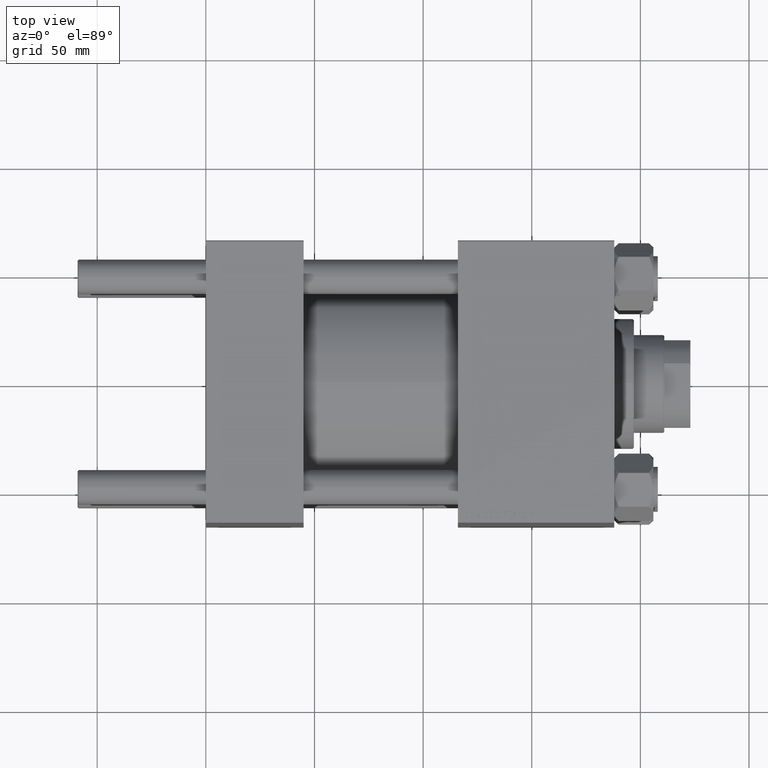
[diagram: clean part render]
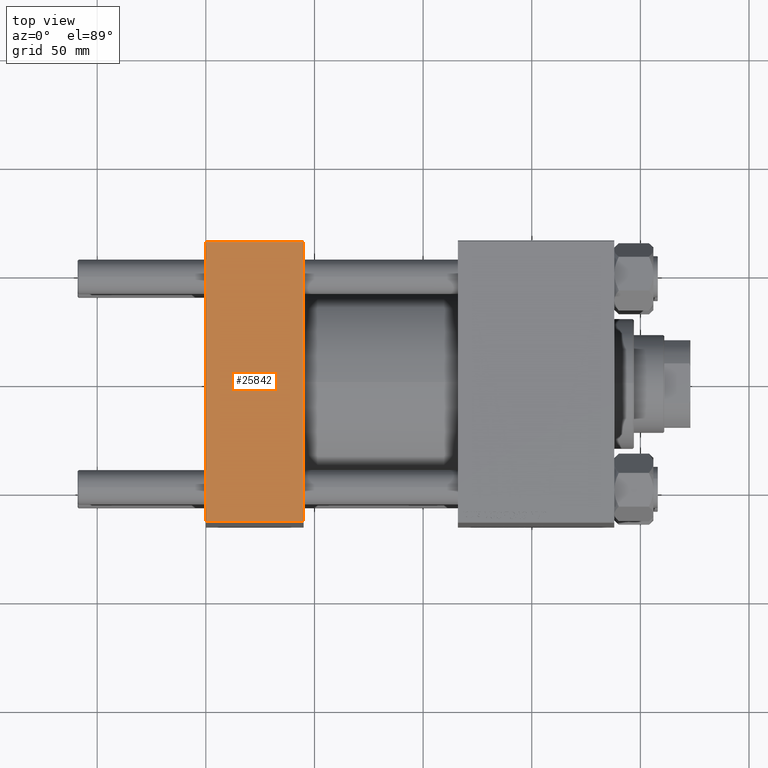
[diagram: same view with one face highlighted and labeled with its STEP entity id]
A machine part, top view. The second image highlights one B-rep face of the part: STEP entity #25842.
In plain terms, the highlighted planar face has unit normal (0, 0, -1).
Its self-contained STEP definition (entity closure, byte-faithful):
#2914 = CARTESIAN_POINT ( 'NONE',  ( 0.000000000000000000, 64.49999999999997158, 65.00000000000001421 ) ) ;
#2931 = ORIENTED_EDGE ( 'NONE', *, *, #12600, .F. ) ;
#7073 = ORIENTED_EDGE ( 'NONE', *, *, #10068, .T. ) ;
#7778 = DIRECTION ( 'NONE',  ( 0.000000000000000000, 1.067522139062650548E-16, -1.000000000000000000 ) ) ;
#8434 = VECTOR ( 'NONE', #26002, 1000.000000000000000 ) ;
#8777 = EDGE_LOOP ( 'NONE', ( #27815, #33668, #2931, #7073 ) ) ;
#10068 = EDGE_CURVE ( 'NONE', #30693, #13009, #37810, .T. ) ;
#11890 = CARTESIAN_POINT ( 'NONE',  ( 0.000000000000000000, -64.49999999999997158, 65.00000000000000000 ) ) ;
#12600 = EDGE_CURVE ( 'NONE', #30693, #30250, #39204, .T. ) ;
#13009 = VERTEX_POINT ( 'NONE', #44229 ) ;
#14806 = VECTOR ( 'NONE', #38058, 1000.000000000000000 ) ;
#16076 = AXIS2_PLACEMENT_3D ( 'NONE', #23577, #7778, #42178 ) ;
#16448 = CARTESIAN_POINT ( 'NONE',  ( 45.00000000000000000, 64.49999999999997158, 65.00000000000001421 ) ) ;
#16535 = CARTESIAN_POINT ( 'NONE',  ( 45.00000000000000000, 65.00000000000000000, 65.00000000000001421 ) ) ;
#17497 = EDGE_CURVE ( 'NONE', #13009, #39975, #38208, .T. ) ;
#20704 = LINE ( 'NONE', #48710, #36340 ) ;
#20960 = DIRECTION ( 'NONE',  ( 1.000000000000000000, 0.000000000000000000, 0.000000000000000000 ) ) ;
#23577 = CARTESIAN_POINT ( 'NONE',  ( 45.00000000000000000, 65.00000000000000000, 65.00000000000001421 ) ) ;
#24070 = EDGE_CURVE ( 'NONE', #39975, #30250, #20704, .T. ) ;
#25464 = VECTOR ( 'NONE', #46845, 1000.000000000000000 ) ;
#25842 = ADVANCED_FACE ( 'NONE', ( #30965 ), #38863, .F. ) ;
#26002 = DIRECTION ( 'NONE',  ( 0.000000000000000000, -1.000000000000000000, -1.067522139062650425E-16 ) ) ;
#27815 = ORIENTED_EDGE ( 'NONE', *, *, #17497, .T. ) ;
#29572 = CARTESIAN_POINT ( 'NONE',  ( 0.000000000000000000, 65.00000000000000000, 65.00000000000001421 ) ) ;
#30250 = VERTEX_POINT ( 'NONE', #30282 ) ;
#30282 = CARTESIAN_POINT ( 'NONE',  ( 45.00000000000000000, -64.49999999999997158, 65.00000000000000000 ) ) ;
#30693 = VERTEX_POINT ( 'NONE', #16448 ) ;
#30965 = FACE_OUTER_BOUND ( 'NONE', #8777, .T. ) ;
#33668 = ORIENTED_EDGE ( 'NONE', *, *, #24070, .T. ) ;
#36340 = VECTOR ( 'NONE', #20960, 1000.000000000000000 ) ;
#37810 = LINE ( 'NONE', #2914, #14806 ) ;
#38058 = DIRECTION ( 'NONE',  ( -1.000000000000000000, 0.000000000000000000, 0.000000000000000000 ) ) ;
#38208 = LINE ( 'NONE', #29572, #8434 ) ;
#38863 = PLANE ( 'NONE',  #16076 ) ;
#39204 = LINE ( 'NONE', #16535, #25464 ) ;
#39975 = VERTEX_POINT ( 'NONE', #11890 ) ;
#42178 = DIRECTION ( 'NONE',  ( 0.000000000000000000, 1.000000000000000000, 1.067522139062650548E-16 ) ) ;
#44229 = CARTESIAN_POINT ( 'NONE',  ( 0.000000000000000000, 64.49999999999997158, 65.00000000000001421 ) ) ;
#46845 = DIRECTION ( 'NONE',  ( 0.000000000000000000, -1.000000000000000000, -1.067522139062650425E-16 ) ) ;
#48710 = CARTESIAN_POINT ( 'NONE',  ( 45.00000000000000000, -64.49999999999997158, 65.00000000000000000 ) ) ;